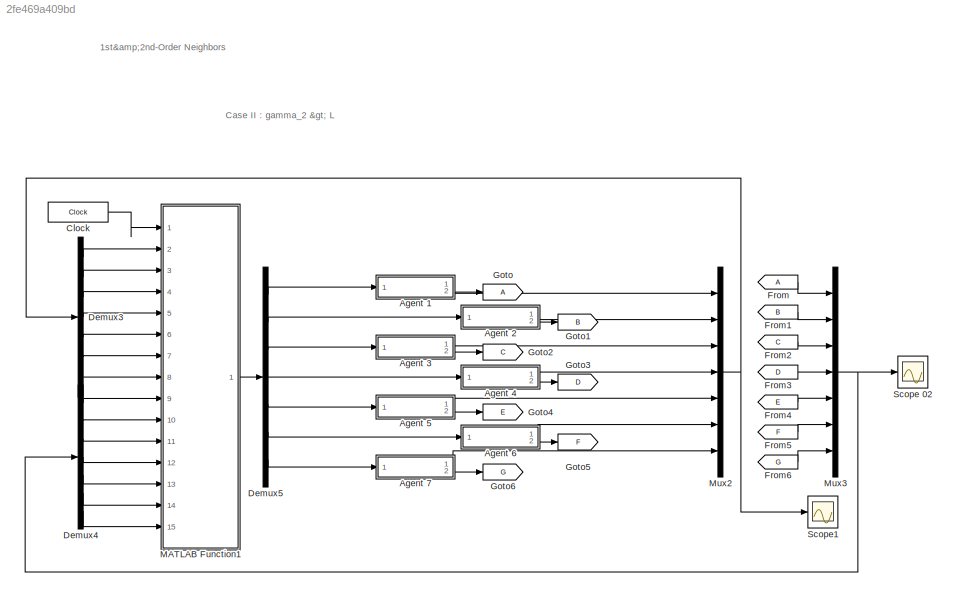
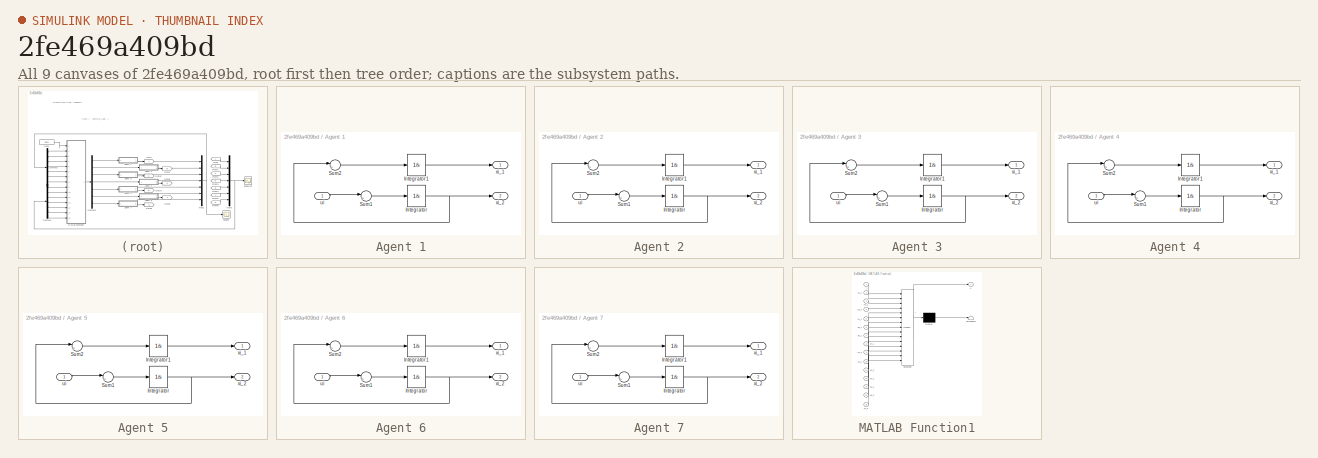
[diagram: thumbnail index - all 9 canvases of the model, root first then tree order]
MODEL slx_2fe469a409bd
KIND model
CONFIG AbsTol = auto
CONFIG EnableMultiTasking = off
CONFIG FixedStep = auto
CONFIG MaxStep = auto
CONFIG MinStep = auto
CONFIG RelTol = 1e-3
CONFIG SampleTimeConstraint = Unconstrained
CONFIG SolverName = VariableStepAuto
CONFIG StartTime = 0.0
CONFIG StopTime = 25
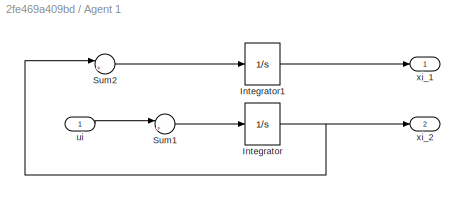
BLOCK [SubSystem] Agent 1
  Ports = [1, 2]
  RequestExecContextInheritance = off
BLOCK [Integrator] Agent 1/Integrator
  InitialCondition = -1
  Ports = [1, 1]
BLOCK [Integrator] Agent 1/Integrator1
  InitialCondition = 3.5
  Ports = [1, 1]
BLOCK [Sum] Agent 1/Sum1
  Inputs = |+-
  Ports = [2, 1]
BLOCK [Sum] Agent 1/Sum2
  Inputs = |++
  Ports = [2, 1]
BLOCK [Inport] Agent 1/ui
BLOCK [Outport] Agent 1/xi_1
BLOCK [Outport] Agent 1/xi_2
  Port = 2
BLOCK [SubSystem] Agent 2
  Ports = [1, 2]
  RequestExecContextInheritance = off
BLOCK [Integrator] Agent 2/Integrator
  InitialCondition = -1.5
  Ports = [1, 1]
BLOCK [Integrator] Agent 2/Integrator1
  InitialCondition = 2
  Ports = [1, 1]
BLOCK [Sum] Agent 2/Sum1
  Inputs = |+-
  Ports = [2, 1]
BLOCK [Sum] Agent 2/Sum2
  Inputs = |++
  Ports = [2, 1]
BLOCK [Inport] Agent 2/ui
BLOCK [Outport] Agent 2/xi_1
BLOCK [Outport] Agent 2/xi_2
  Port = 2
BLOCK [SubSystem] Agent 3
  Ports = [1, 2]
  RequestExecContextInheritance = off
BLOCK [Integrator] Agent 3/Integrator
  InitialCondition = -1.2
  Ports = [1, 1]
BLOCK [Integrator] Agent 3/Integrator1
  InitialCondition = 3
  Ports = [1, 1]
BLOCK [Sum] Agent 3/Sum1
  Inputs = |+-
  Ports = [2, 1]
BLOCK [Sum] Agent 3/Sum2
  Inputs = |++
  Ports = [2, 1]
BLOCK [Inport] Agent 3/ui
BLOCK [Outport] Agent 3/xi_1
BLOCK [Outport] Agent 3/xi_2
  Port = 2
BLOCK [SubSystem] Agent 4
  Ports = [1, 2]
  RequestExecContextInheritance = off
BLOCK [Integrator] Agent 4/Integrator
  InitialCondition = 1.7
  Ports = [1, 1]
BLOCK [Integrator] Agent 4/Integrator1
  InitialCondition = 3.7
  Ports = [1, 1]
BLOCK [Sum] Agent 4/Sum1
  Inputs = |+-
  Ports = [2, 1]
BLOCK [Sum] Agent 4/Sum2
  Inputs = |++
  Ports = [2, 1]
BLOCK [Inport] Agent 4/ui
BLOCK [Outport] Agent 4/xi_1
BLOCK [Outport] Agent 4/xi_2
  Port = 2
BLOCK [SubSystem] Agent 5
  Ports = [1, 2]
  RequestExecContextInheritance = off
BLOCK [Integrator] Agent 5/Integrator
  InitialCondition = 1.8
  Ports = [1, 1]
BLOCK [Integrator] Agent 5/Integrator1
  InitialCondition = 2.2
  Ports = [1, 1]
BLOCK [Sum] Agent 5/Sum1
  Inputs = |+-
  Ports = [2, 1]
BLOCK [Sum] Agent 5/Sum2
  Inputs = |++
  Ports = [2, 1]
BLOCK [Inport] Agent 5/ui
BLOCK [Outport] Agent 5/xi_1
BLOCK [Outport] Agent 5/xi_2
  Port = 2
BLOCK [SubSystem] Agent 6
  Ports = [1, 2]
  RequestExecContextInheritance = off
BLOCK [Integrator] Agent 6/Integrator
  InitialCondition = 1.4
  Ports = [1, 1]
BLOCK [Integrator] Agent 6/Integrator1
  InitialCondition = 3.2
  Ports = [1, 1]
BLOCK [Sum] Agent 6/Sum1
  Inputs = |+-
  Ports = [2, 1]
BLOCK [Sum] Agent 6/Sum2
  Inputs = |++
  Ports = [2, 1]
BLOCK [Inport] Agent 6/ui
BLOCK [Outport] Agent 6/xi_1
BLOCK [Outport] Agent 6/xi_2
  Port = 2
BLOCK [SubSystem] Agent 7
  Ports = [1, 2]
  RequestExecContextInheritance = off
BLOCK [Integrator] Agent 7/Integrator
  InitialCondition = 1.9
  Ports = [1, 1]
BLOCK [Integrator] Agent 7/Integrator1
  InitialCondition = 3.3
  Ports = [1, 1]
BLOCK [Sum] Agent 7/Sum1
  Inputs = |+-
  Ports = [2, 1]
BLOCK [Sum] Agent 7/Sum2
  Inputs = |++
  Ports = [2, 1]
BLOCK [Inport] Agent 7/ui
BLOCK [Outport] Agent 7/xi_1
BLOCK [Outport] Agent 7/xi_2
  Port = 2
BLOCK [Clock] Clock
  DisplayTime = on
BLOCK [Demux] Demux3
  Outputs = 7
  Ports = [1, 7]
BLOCK [Demux] Demux4
  Outputs = 7
  Ports = [1, 7]
BLOCK [Demux] Demux5
  Outputs = 7
  Ports = [1, 7]
BLOCK [From] From
BLOCK [From] From1
  GotoTag = B
BLOCK [From] From2
  GotoTag = C
BLOCK [From] From3
  GotoTag = D
BLOCK [From] From4
  GotoTag = E
BLOCK [From] From5
  GotoTag = F
BLOCK [From] From6
  GotoTag = G
BLOCK [Goto] Goto
BLOCK [Goto] Goto1
  GotoTag = B
BLOCK [Goto] Goto2
  GotoTag = C
BLOCK [Goto] Goto3
  GotoTag = D
BLOCK [Goto] Goto4
  GotoTag = E
BLOCK [Goto] Goto5
  GotoTag = F
BLOCK [Goto] Goto6
  GotoTag = G
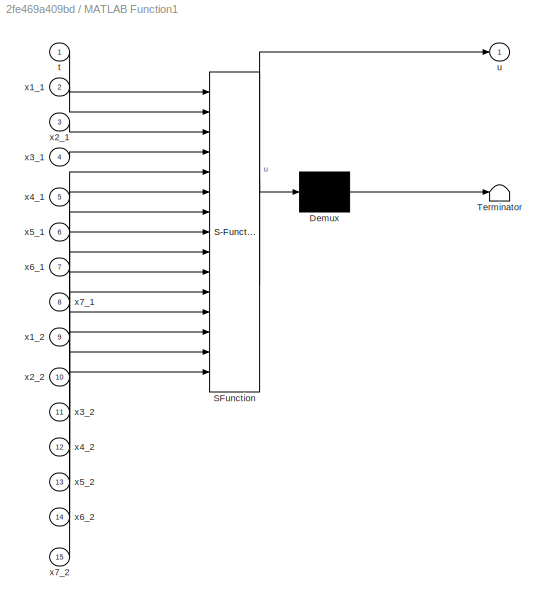
BLOCK [SubSystem] MATLAB Function1
  ErrorFcn = Stateflow.Translate.translate
  PermitHierarchicalResolution = ExplicitOnly
  Ports = [15, 1]
  RequestExecContextInheritance = off
  SFBlockType = MATLAB Function
  TreatAsAtomicUnit = on
BLOCK [Demux] MATLAB Function1/ Demux 
  Outputs = 1
  Ports = [1, 1]
BLOCK [S-Function] MATLAB Function1/ SFunction 
  EnableBusSupport = on
  FunctionName = sf_sfun
  PortCounts = [15 2]
  Ports = [15, 2]
  SFcnIsStateOwnerBlock = off
  SFunctionDeploymentMode = off
  Tag = Stateflow S-Function 1
BLOCK [Terminator] MATLAB Function1/ Terminator 
BLOCK [Inport] MATLAB Function1/t
BLOCK [Outport] MATLAB Function1/u
BLOCK [Inport] MATLAB Function1/x1_1
  Port = 2
BLOCK [Inport] MATLAB Function1/x1_2
  Port = 9
BLOCK [Inport] MATLAB Function1/x2_1
  Port = 3
BLOCK [Inport] MATLAB Function1/x2_2
  Port = 10
BLOCK [Inport] MATLAB Function1/x3_1
  Port = 4
BLOCK [Inport] MATLAB Function1/x3_2
  Port = 11
BLOCK [Inport] MATLAB Function1/x4_1
  Port = 5
BLOCK [Inport] MATLAB Function1/x4_2
  Port = 12
BLOCK [Inport] MATLAB Function1/x5_1
  Port = 6
BLOCK [Inport] MATLAB Function1/x5_2
  Port = 13
BLOCK [Inport] MATLAB Function1/x6_1
  Port = 7
BLOCK [Inport] MATLAB Function1/x6_2
  Port = 14
BLOCK [Inport] MATLAB Function1/x7_1
  Port = 8
BLOCK [Inport] MATLAB Function1/x7_2
  Port = 15
BLOCK [Mux] Mux2
  DisplayOption = bar
  Inputs = 7
  Ports = [7, 1]
BLOCK [Mux] Mux3
  DisplayOption = bar
  Inputs = 7
  Ports = [7, 1]
BLOCK [Scope] Scope 02
  Floating = off
  NumInputPorts = 1
  Ports = [1]
  ScopeSpecificationString = Simulink.scopes.TimeScopeBlockCfg('CurrentConfiguration', extmgr.ConfigurationSet(extmgr.Configuration('Core','General UI',true),extmgr.Configuration('Core','Source UI',true),extmgr.Configuration('Sources','WiredSimulink',true),extmgr.Configuration('Visuals','Time Domain',true,'SerializedDisplays',{struct('MinYLimReal','-1.925','MaxYLimReal','2.325','YLabelReal','','MinYLimMag','0.00000','MaxYLimM...<+1463ch>
BLOCK [Scope] Scope1
  Floating = off
  NumInputPorts = 1
  Ports = [1]
  ScopeSpecificationString = Simulink.scopes.TimeScopeBlockCfg('CurrentConfiguration', extmgr.ConfigurationSet(extmgr.Configuration('Core','General UI',true),extmgr.Configuration('Core','Source UI',true),extmgr.Configuration('Sources','WiredSimulink',true,'DataLoggingVariableName','ScopeData1'),extmgr.Configuration('Visuals','Time Domain',true,'SerializedDisplays',{struct('MinYLimReal','0.38011','MaxYLimReal','15.57681','YLab...<+1513ch>
ANNOTATION (root): Case II : gamma_2 > L
ANNOTATION (root): 1st&2nd-Order Neighbors
LINE Agent 1/Integrator1:1 -> Agent 1/xi_1:1
NET Agent 1/Integrator:1 -> Agent 1/Sum2:1, Agent 1/xi_2:1
LINE Agent 1/Sum1:1 -> Agent 1/Integrator:1
LINE Agent 1/Sum2:1 -> Agent 1/Integrator1:1
LINE Agent 1/ui:1 -> Agent 1/Sum1:1
LINE Agent 1:1 -> Mux2:1
LINE Agent 1:2 -> Goto:1
LINE Agent 2/Integrator1:1 -> Agent 2/xi_1:1
NET Agent 2/Integrator:1 -> Agent 2/Sum2:1, Agent 2/xi_2:1
LINE Agent 2/Sum1:1 -> Agent 2/Integrator:1
LINE Agent 2/Sum2:1 -> Agent 2/Integrator1:1
LINE Agent 2/ui:1 -> Agent 2/Sum1:1
LINE Agent 2:1 -> Mux2:2
LINE Agent 2:2 -> Goto1:1
LINE Agent 3/Integrator1:1 -> Agent 3/xi_1:1
NET Agent 3/Integrator:1 -> Agent 3/Sum2:1, Agent 3/xi_2:1
LINE Agent 3/Sum1:1 -> Agent 3/Integrator:1
LINE Agent 3/Sum2:1 -> Agent 3/Integrator1:1
LINE Agent 3/ui:1 -> Agent 3/Sum1:1
LINE Agent 3:1 -> Mux2:3
LINE Agent 3:2 -> Goto2:1
LINE Agent 4/Integrator1:1 -> Agent 4/xi_1:1
NET Agent 4/Integrator:1 -> Agent 4/Sum2:1, Agent 4/xi_2:1
LINE Agent 4/Sum1:1 -> Agent 4/Integrator:1
LINE Agent 4/Sum2:1 -> Agent 4/Integrator1:1
LINE Agent 4/ui:1 -> Agent 4/Sum1:1
LINE Agent 4:1 -> Mux2:4
LINE Agent 4:2 -> Goto3:1
LINE Agent 5/Integrator1:1 -> Agent 5/xi_1:1
NET Agent 5/Integrator:1 -> Agent 5/Sum2:1, Agent 5/xi_2:1
LINE Agent 5/Sum1:1 -> Agent 5/Integrator:1
LINE Agent 5/Sum2:1 -> Agent 5/Integrator1:1
LINE Agent 5/ui:1 -> Agent 5/Sum1:1
LINE Agent 5:1 -> Mux2:5
LINE Agent 5:2 -> Goto4:1
LINE Agent 6/Integrator1:1 -> Agent 6/xi_1:1
NET Agent 6/Integrator:1 -> Agent 6/Sum2:1, Agent 6/xi_2:1
LINE Agent 6/Sum1:1 -> Agent 6/Integrator:1
LINE Agent 6/Sum2:1 -> Agent 6/Integrator1:1
LINE Agent 6/ui:1 -> Agent 6/Sum1:1
LINE Agent 6:1 -> Mux2:6
LINE Agent 6:2 -> Goto5:1
LINE Agent 7/Integrator1:1 -> Agent 7/xi_1:1
NET Agent 7/Integrator:1 -> Agent 7/Sum2:1, Agent 7/xi_2:1
LINE Agent 7/Sum1:1 -> Agent 7/Integrator:1
LINE Agent 7/Sum2:1 -> Agent 7/Integrator1:1
LINE Agent 7/ui:1 -> Agent 7/Sum1:1
LINE Agent 7:1 -> Mux2:7
LINE Agent 7:2 -> Goto6:1
LINE Clock:1 -> MATLAB Function1:1
LINE Demux3:1 -> MATLAB Function1:2
LINE Demux3:2 -> MATLAB Function1:3
LINE Demux3:3 -> MATLAB Function1:4
LINE Demux3:4 -> MATLAB Function1:5
LINE Demux3:5 -> MATLAB Function1:6
LINE Demux3:6 -> MATLAB Function1:7
LINE Demux3:7 -> MATLAB Function1:8
LINE Demux4:1 -> MATLAB Function1:9
LINE Demux4:2 -> MATLAB Function1:10
LINE Demux4:3 -> MATLAB Function1:11
LINE Demux4:4 -> MATLAB Function1:12
LINE Demux4:5 -> MATLAB Function1:13
LINE Demux4:6 -> MATLAB Function1:14
LINE Demux4:7 -> MATLAB Function1:15
LINE Demux5:1 -> Agent 1:1
LINE Demux5:2 -> Agent 2:1
LINE Demux5:3 -> Agent 3:1
LINE Demux5:4 -> Agent 4:1
LINE Demux5:5 -> Agent 5:1
LINE Demux5:6 -> Agent 6:1
LINE Demux5:7 -> Agent 7:1
LINE From1:1 -> Mux3:2
LINE From2:1 -> Mux3:3
LINE From3:1 -> Mux3:4
LINE From4:1 -> Mux3:5
LINE From5:1 -> Mux3:6
LINE From6:1 -> Mux3:7
LINE From:1 -> Mux3:1
LINE MATLAB Function1:1 -> Demux5:1
NET Mux2:1 -> Demux3:1, Scope1:1
NET Mux3:1 -> Demux4:1, Scope 02:1
note: NET lines group one-source signal fan-out (src -> all destinations, sorted); 1:1 wires keep LINE
CHART MATLAB Function1 states=1 transitions=1
  STATE_LABEL 'eML_blk_kernel()'
  STATE_LABEL 'SCRIPT:\nfunction u = func(t, x1_1, ...\n                     x2_1, ...\n                     x3_1, ...\n                     x4_1, ...\n                     x5_1, ...\n                     x6_1, ...\n                     x7_1, ...\n                     x1_2, ...\n                     x2_2, ...\n                     x3_2, ...\n                     x4_2, ...\n                     x5_2, ...\n                    ...<+1013ch>'
CHART  states=0 transitions=0
